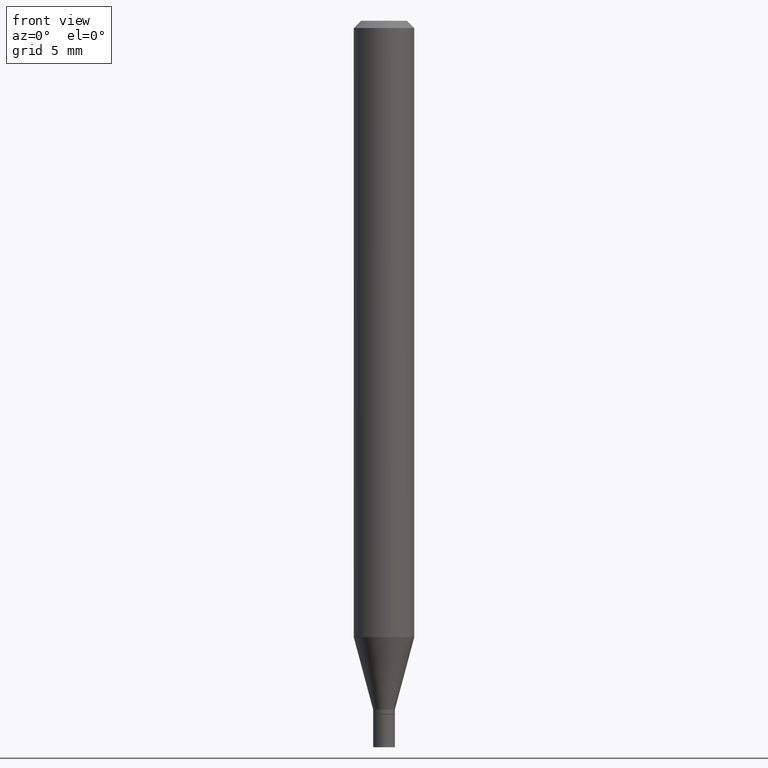
[diagram: clean part render]
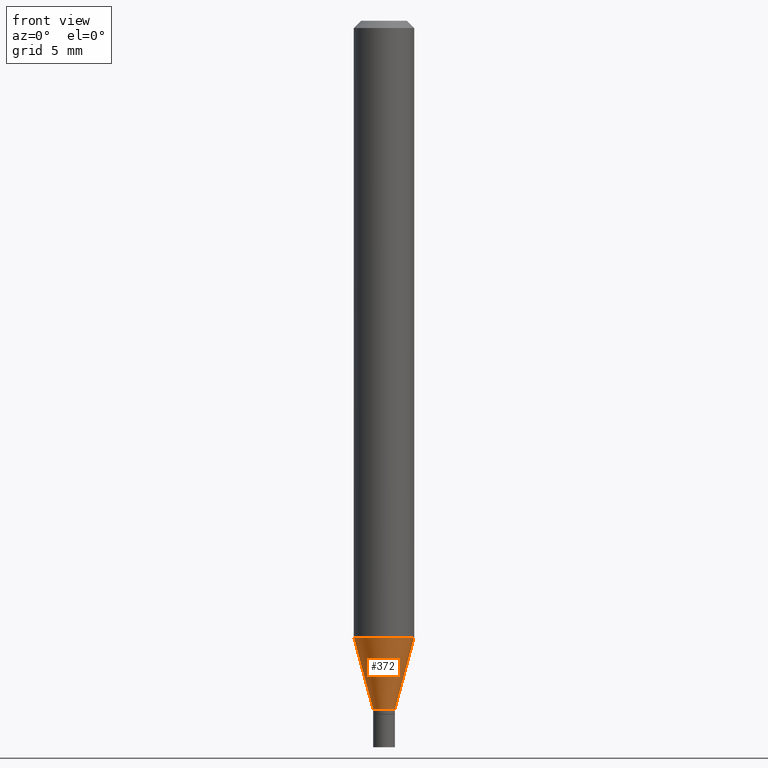
[diagram: same view with one face highlighted and labeled with its STEP entity id]
A machine part, front view. The second image highlights one B-rep face of the part: STEP entity #372.
In plain terms, the highlighted conical surface has half-angle 15 deg.
Its self-contained STEP definition (entity closure, byte-faithful):
#9 = AXIS2_PLACEMENT_3D ( 'NONE', #248, #388, #382 ) ;
#18 = VERTEX_POINT ( 'NONE', #124 ) ;
#30 = LINE ( 'NONE', #463, #135 ) ;
#32 = AXIS2_PLACEMENT_3D ( 'NONE', #275, #344, #68 ) ;
#54 = AXIS2_PLACEMENT_3D ( 'NONE', #111, #76, #217 ) ;
#66 = DIRECTION ( 'NONE',  ( -0.2588190451025205729, 5.211531920934544731E-15, 0.9659258262890682012 ) ) ;
#68 = DIRECTION ( 'NONE',  ( 1.000000000000000000, -6.982962677686249356E-15, 0.000000000000000000 ) ) ;
#76 = DIRECTION ( 'NONE',  ( -2.445468806185136597E-29, 3.491481338843145583E-15, 1.000000000000000000 ) ) ;
#97 = DIRECTION ( 'NONE',  ( 0.2588190451025205729, 1.565188264969627490E-15, 0.9659258262890682012 ) ) ;
#111 = CARTESIAN_POINT ( 'NONE',  ( 3.477456642395264859E-29, -4.964886463834953365E-15, -1.421999999999999931 ) ) ;
#114 = CONICAL_SURFACE ( 'NONE', #54, 0.02249999999999991937, 0.2617993877991492968 ) ;
#124 = CARTESIAN_POINT ( 'NONE',  ( 0.06250000000000000000, -4.880106201180694651E-15, -1.272717967697244434 ) ) ;
#126 = ORIENTED_EDGE ( 'NONE', *, *, #153, .T. ) ;
#134 = CARTESIAN_POINT ( 'NONE',  ( 0.02249999999999991937, -5.122003124082893419E-15, -1.421999999999999931 ) ) ;
#135 = VECTOR ( 'NONE', #97, 39.37007874015748854 ) ;
#142 = FACE_OUTER_BOUND ( 'NONE', #223, .T. ) ;
#143 = CIRCLE ( 'NONE', #32, 0.02249999999999991937 ) ;
#153 = EDGE_CURVE ( 'NONE', #385, #204, #143, .T. ) ;
#159 = ORIENTED_EDGE ( 'NONE', *, *, #237, .F. ) ;
#188 = ORIENTED_EDGE ( 'NONE', *, *, #250, .T. ) ;
#194 = EDGE_CURVE ( 'NONE', #385, #232, #283, .T. ) ;
#204 = VERTEX_POINT ( 'NONE', #134 ) ;
#211 = CARTESIAN_POINT ( 'NONE',  ( -0.02249999999999991937, -4.805014348288931075E-15, -1.421999999999999931 ) ) ;
#217 = DIRECTION ( 'NONE',  ( 1.000000000000000000, -6.982962677686249356E-15, 0.000000000000000000 ) ) ;
#223 = EDGE_LOOP ( 'NONE', ( #267, #126, #188, #159 ) ) ;
#232 = VERTEX_POINT ( 'NONE', #455 ) ;
#237 = EDGE_CURVE ( 'NONE', #232, #18, #270, .T. ) ;
#248 = CARTESIAN_POINT ( 'NONE',  ( 3.112392089074953397E-29, -4.443671033825302981E-15, -1.272717967697244434 ) ) ;
#250 = EDGE_CURVE ( 'NONE', #204, #18, #30, .T. ) ;
#267 = ORIENTED_EDGE ( 'NONE', *, *, #194, .F. ) ;
#270 = CIRCLE ( 'NONE', #9, 0.06250000000000000000 ) ;
#275 = CARTESIAN_POINT ( 'NONE',  ( 3.477456642395264859E-29, -4.964886463834953365E-15, -1.421999999999999931 ) ) ;
#283 = LINE ( 'NONE', #211, #428 ) ;
#344 = DIRECTION ( 'NONE',  ( -2.445468806185136597E-29, 3.491481338843145583E-15, 1.000000000000000000 ) ) ;
#372 = ADVANCED_FACE ( 'NONE', ( #142 ), #114, .T. ) ;
#382 = DIRECTION ( 'NONE',  ( 1.000000000000000000, -6.982962677686262766E-15, 0.000000000000000000 ) ) ;
#385 = VERTEX_POINT ( 'NONE', #465 ) ;
#388 = DIRECTION ( 'NONE',  ( -2.445468806185136597E-29, 3.491481338843145583E-15, 1.000000000000000000 ) ) ;
#428 = VECTOR ( 'NONE', #66, 39.37007874015748854 ) ;
#455 = CARTESIAN_POINT ( 'NONE',  ( -0.06250000000000000000, -3.999581823975240365E-15, -1.272717967697244434 ) ) ;
#463 = CARTESIAN_POINT ( 'NONE',  ( 0.02249999999999991937, -5.122003124082893419E-15, -1.421999999999999931 ) ) ;
#465 = CARTESIAN_POINT ( 'NONE',  ( -0.02249999999999991937, -4.402298086132085720E-15, -1.421999999999999931 ) ) ;